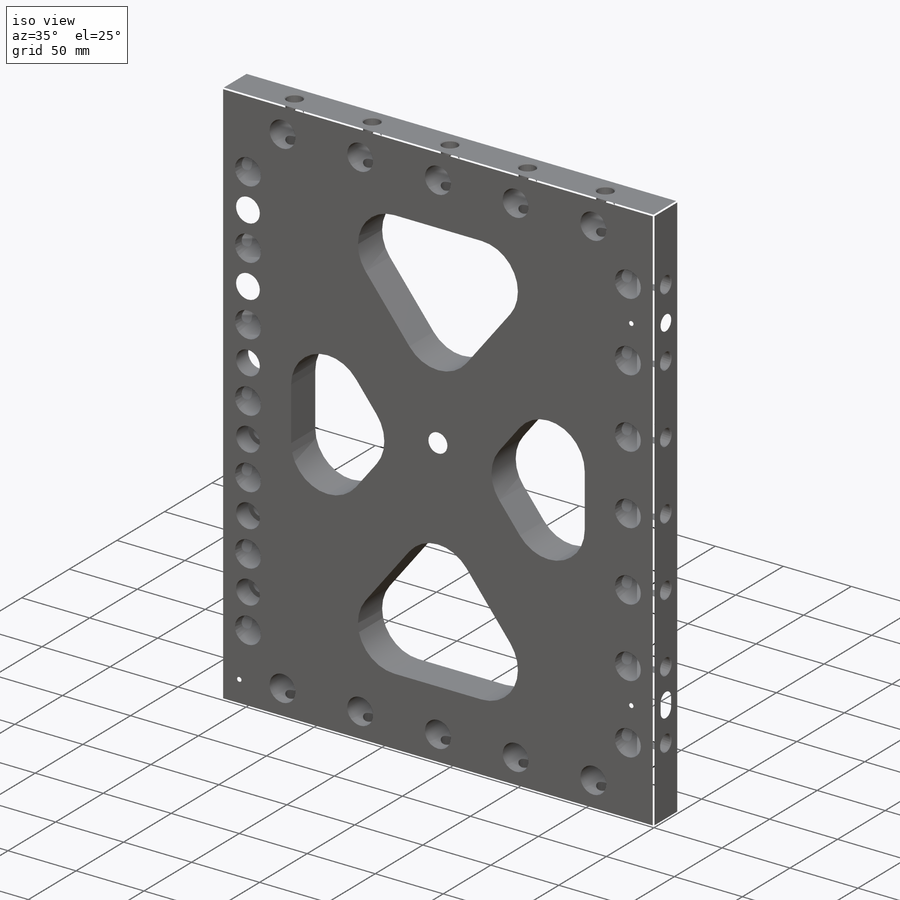
[diagram: iso view]
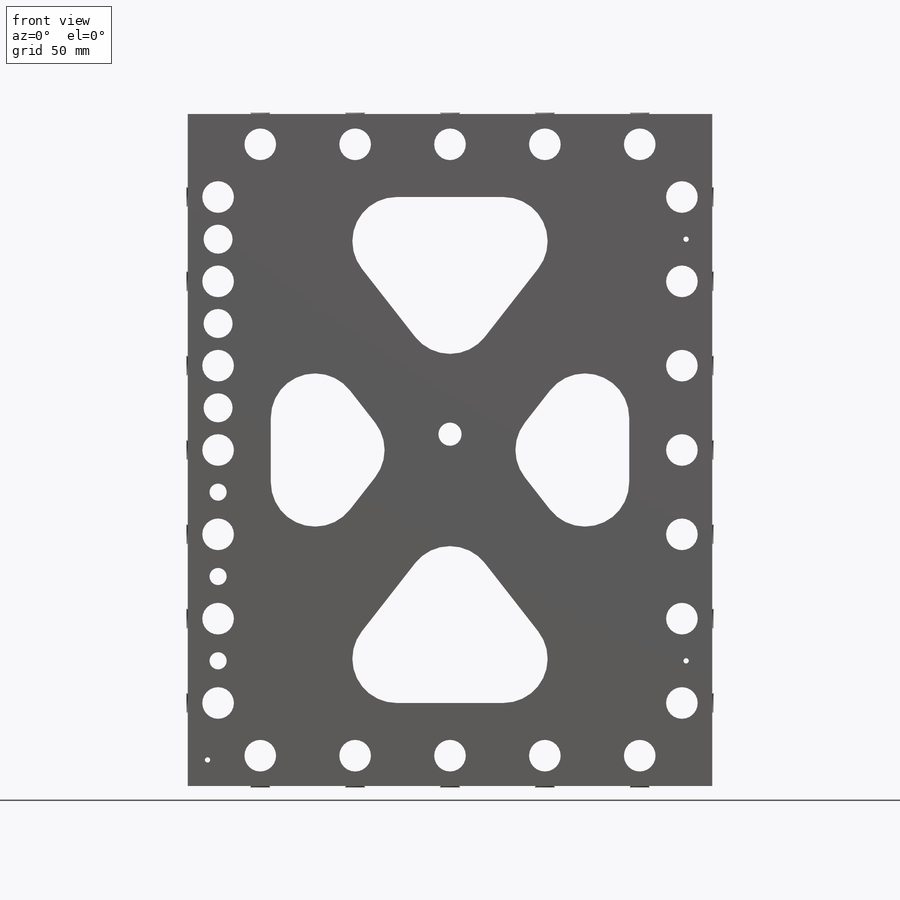
[diagram: front view]
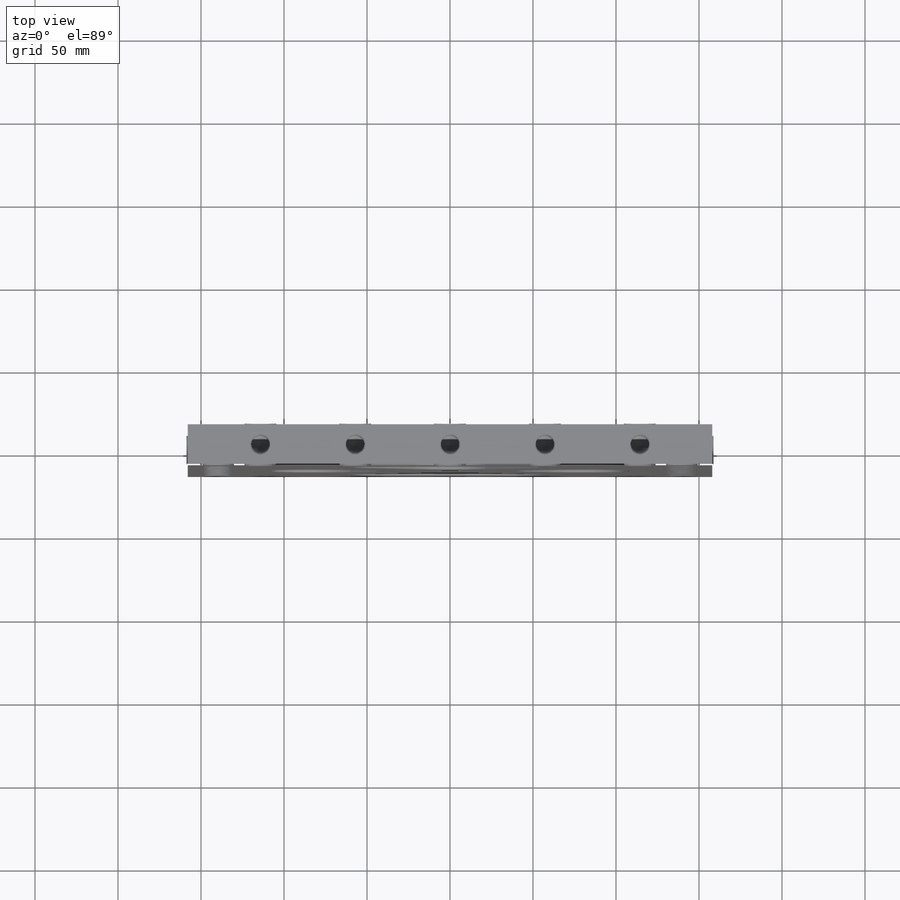
[diagram: top view]
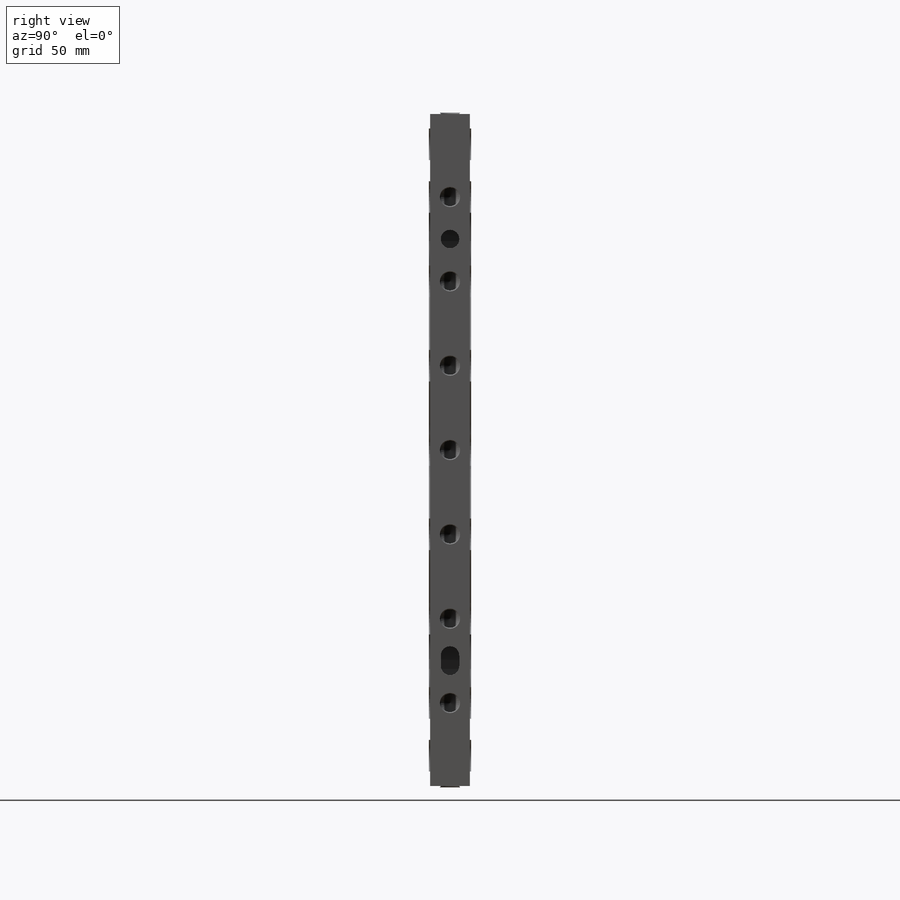
[diagram: right view]
SOLIDWORKS PART (.sldprt)
format: sldprt  version: not decoded by parser v0  size: 1,061,888 bytes
history: native  units: mm
features: sketch x21, hole x9, cut_extrude x2, pattern_linear x2, mirror x2, chamfer x2, material x1, extrude x1, fillet x1 (+14 scaffold rows collapsed)
feature tree (55):
  scaffold x14  (default folders/planes/origin — collapsed)
  material  "6061-T6 Al"
  sketch  "Sketch2"  dims[D1=317.5mm D2=406.4mm]
  extrude  "Extrude1"  Depth=25.4mm
  sketch  "Sketch8"  dims[D1=50.8mm D2=50.8mm D3=50.8mm]
  cut_extrude  "Triangles -- Cut-Extrude2"  [1 undecoded]
  fillet  "Triangles -- Fillet1"  Radius=26.67mm
  hole  "3/4 (0.75) Diameter Hole2"  Diameter=19.05mm Depth=25.4mm
  sketch  "Sketch4"  dims[D1=19.05mm]
  sketch  "Sketch3"  dims[hole-wizard template sketch: 61 standard entries collapsed; hole parameters above]
  hole  "7/16 (0.4375) Diameter Hole1"  Diameter=11.1125mm Depth=34.925mm
  sketch  "Sketch6"
  sketch  "Sketch5"  dims[hole-wizard template sketch: 46 standard entries collapsed; hole parameters above]
  pattern_linear  "LPattern3"  Count1=4 Count2=4 Spacing1=50.8mm Spacing2=50.8mm
  mirror  "Mirror1"
  hole  "3/4 (0.75) Diameter Hole1"  Diameter=19.05mm Depth=25.4mm
  sketch  "Sketch11"  dims[D1=19.05mm]
  sketch  "Sketch10"  dims[hole-wizard template sketch: 61 standard entries collapsed; hole parameters above]
  hole  "7/16 (0.4375) Diameter Hole2"  Diameter=11.1125mm Depth=34.925mm
  sketch  "Sketch13"
  sketch  "Sketch12"  dims[hole-wizard template sketch: 46 standard entries collapsed; hole parameters above]
  pattern_linear  "LPattern4"  Count1=3 Count2=3 Spacing1=57.15mm Spacing2=57.15mm
  mirror  "Mirror2"
  hole  "CBORE for 3/8 Socket Head Cap Screw1"  Diameter=10.31748mm Depth=25.4mm
  sketch  "Sketch18"  dims[D1=19.05mm]
  sketch  "Sketch17"  dims[hole-wizard template sketch: 43 standard entries collapsed; hole parameters kept: c12.C'Bore Dia.=17.4625mm c12.C'Bore Depth=12.7mm c12.Far C'Sink Dia.=11.684mm c12.D6=~2.963249mm c12.Far C'Sink Angle=82.0deg]
  hole  "3/8 (0.375) Pin + Lead-In Hole1"  Diameter=9.525mm Depth=19.05mm
  sketch  "Sketch21"  dims[D1=12.7mm]
  sketch  "Sketch20"  dims[hole-wizard template sketch: 35 standard entries collapsed; hole parameters above]
  hole  "3/8 (0.376) Pin Locate1"  Diameter=9.5504mm Depth=19.05mm
  sketch  "Sketch23"
  sketch  "Sketch22"  dims[hole-wizard template sketch: 46 standard entries collapsed; hole parameters above]
  sketch  "Sketch24"  dims[D1=6.35mm D2=2.54mm D3=4.7752mm]
  cut_extrude  "Slot Locate1"  Depth=19.05mm
  chamfer  "Chamfer1"  Distance=0.762mm Angle=45deg
  hole  "1/8 (0.125) Diameter Hole1"  Diameter=3.175mm Depth=9.525mm
  sketch  "Sketch26"  dims[D1=2.54mm]
  sketch  "Sketch25"  dims[hole-wizard template sketch: 47 standard entries collapsed; hole parameters kept: c15.Hole Depth=9.525mm c15.D3=~14.816244mm c15.Drill Angle=118.0deg]
  hole  "1/2 (0.5) Diameter Hole1"  Diameter=12.7mm Depth=25.4mm
  sketch  "Sketch28"  dims[D1=9.525mm]
  sketch  "Sketch27"  dims[hole-wizard template sketch: 46 standard entries collapsed; hole parameters kept: c15.Thru Hole Dia.=12.7mm c15.Thru Hole Depth=25.4mm c15.Near C'Sink Dia.=13.97mm c15.D4=~3.666174mm c15.Near C'Sink Angle=82.0deg c15.Far C'Sink Dia.=13.97mm c15.D6=~9.919017mm c15.Far C'Sink Angle=82.0deg]
  chamfer  "Chamfer2"  Distance=0.762mm Angle=45deg
decode coverage: 34 of 40 modeling features carry decoded parameters
note: ~ marks probable driven/reference dimensions
note: 1 parameter value undecoded
summary: Diameter pulled from absorbed wizard sketch
note: suppression state not decoded; provenance and decode notes live in map.json
